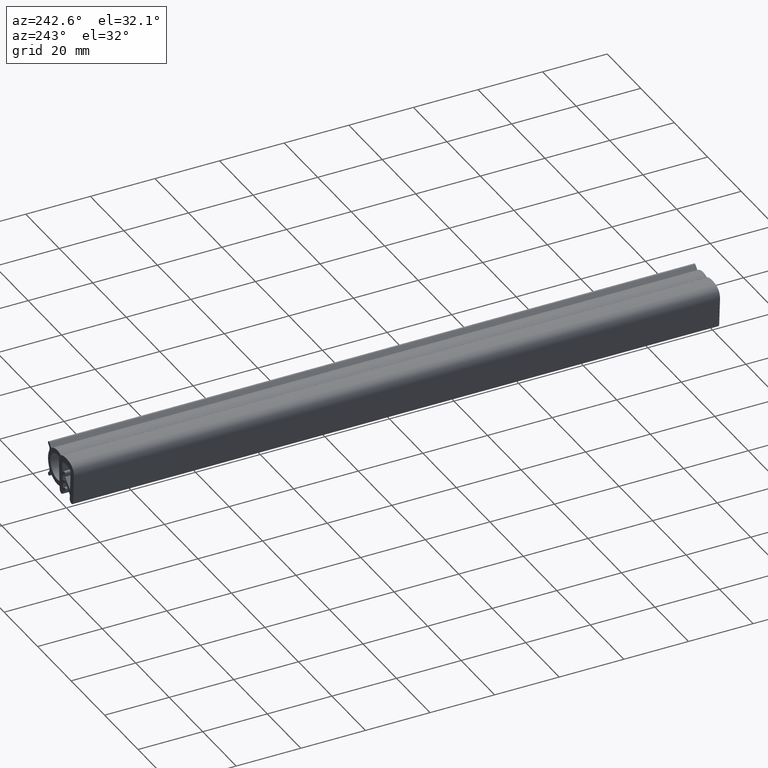
[diagram: clean part render]
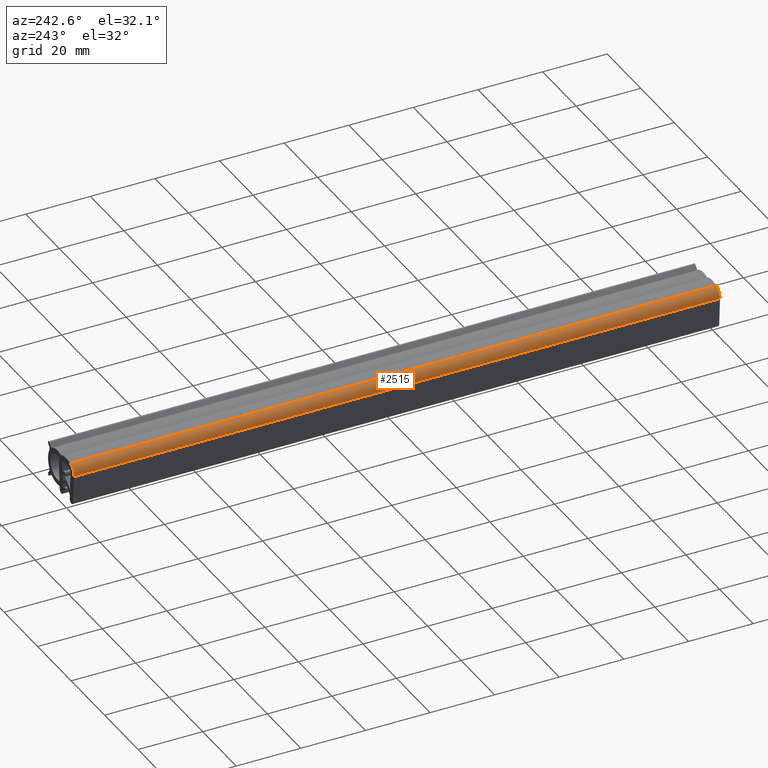
[diagram: same view with one face highlighted and labeled with its STEP entity id]
A machine part, auxiliary view. The second image highlights one B-rep face of the part: STEP entity #2515.
In plain terms, the highlighted face is a freeform B-spline surface patch.
Its self-contained STEP definition (entity closure, byte-faithful):
#1273=CARTESIAN_POINT('',(-2.252474368724600,0.0,-0.286426725031861));
#1274=VERTEX_POINT('',#1273);
#1275=CARTESIAN_POINT('',(-4.496700841699860,0.0,-3.363194973418345));
#1276=VERTEX_POINT('',#1275);
#1277=CARTESIAN_POINT('',(-2.252474368724600,0.0,-0.286426725031861));
#1278=CARTESIAN_POINT('',(-4.638177580234005,0.0,-0.903135297477859));
#1279=CARTESIAN_POINT('',(-4.496700841699860,0.0,-3.363194973418345));
#1287=(BOUNDED_CURVE()B_SPLINE_CURVE(2,(#1277,#1278,#1279),.UNSPECIFIED.,.F.,.U.)CURVE()GEOMETRIC_REPRESENTATION_ITEM()QUASI_UNIFORM_CURVE()RATIONAL_B_SPLINE_CURVE((1.0,0.772746628802413,1.0))REPRESENTATION_ITEM(''));
#1288=EDGE_CURVE('',#1274,#1276,#1287,.T.);
#1607=CARTESIAN_POINT('',(-2.252474368724600,200.0,-0.286426725031861));
#1608=VERTEX_POINT('',#1607);
#1609=CARTESIAN_POINT('',(-4.496700841699860,200.0,-3.363194973418345));
#1610=VERTEX_POINT('',#1609);
#1611=CARTESIAN_POINT('',(-2.252474368724531,200.0,-0.286426725032124));
#1612=CARTESIAN_POINT('',(-4.638177580234005,200.0,-0.903135297477859));
#1613=CARTESIAN_POINT('',(-4.496700841699626,200.0,-3.363194973418332));
#1621=(BOUNDED_CURVE()B_SPLINE_CURVE(2,(#1611,#1612,#1613),.UNSPECIFIED.,.F.,.U.)CURVE()GEOMETRIC_REPRESENTATION_ITEM()QUASI_UNIFORM_CURVE()RATIONAL_B_SPLINE_CURVE((1.0,0.772746628802413,1.0))REPRESENTATION_ITEM(''));
#1622=EDGE_CURVE('',#1608,#1610,#1621,.T.);
#1957=CARTESIAN_POINT('',(-2.252474368724600,200.0,-0.286426725031861));
#1958=CARTESIAN_POINT('',(-2.252474368724600,0.0,-0.286426725031861));
#1959=QUASI_UNIFORM_CURVE('',1,(#1957,#1958),.UNSPECIFIED.,.F.,.U.);
#1960=EDGE_CURVE('',#1608,#1274,#1959,.T.);
#2485=CARTESIAN_POINT('',(-4.496700841699860,200.0,-3.363194973418345));
#2486=CARTESIAN_POINT('',(-4.496700841699860,0.0,-3.363194973418345));
#2487=QUASI_UNIFORM_CURVE('',1,(#2485,#2486),.UNSPECIFIED.,.F.,.U.);
#2488=EDGE_CURVE('',#1610,#1276,#2487,.T.);
#2495=CARTESIAN_POINT('',(-4.490262032770185,205.0,-3.452094026747571));
#2496=CARTESIAN_POINT('',(-4.490262032770185,-5.125000000000000,-3.452094026747571));
#2497=CARTESIAN_POINT('',(-4.725907410042823,205.0,-0.755284073576660));
#2498=CARTESIAN_POINT('',(-4.725907410042823,-5.124999999999999,-0.755284073576660));
#2499=CARTESIAN_POINT('',(-2.067393422987931,204.999999999999970,-0.244778394876447));
#2500=CARTESIAN_POINT('',(-2.067393422987931,-5.125000000000000,-0.244778394876447));
#2508=(BOUNDED_SURFACE()B_SPLINE_SURFACE(1,2,((#2495,#2497,#2499),(#2496,#2498,#2500)),.UNSPECIFIED.,.F.,.F.,.U.)B_SPLINE_SURFACE_WITH_KNOTS((2,2),(3,3),(0.0,210.125000000000000),(0.0,4.613794671245216),.UNSPECIFIED.)GEOMETRIC_REPRESENTATION_ITEM()RATIONAL_B_SPLINE_SURFACE(((1.0,0.740242122591284,0.994137342761868),(1.0,0.740242122591284,0.994137342761868)))REPRESENTATION_ITEM('')SURFACE());
#2509=ORIENTED_EDGE('',*,*,#1288,.F.);
#2510=ORIENTED_EDGE('',*,*,#1960,.F.);
#2511=ORIENTED_EDGE('',*,*,#1622,.T.);
#2512=ORIENTED_EDGE('',*,*,#2488,.T.);
#2513=EDGE_LOOP('',(#2509,#2510,#2511,#2512));
#2514=FACE_OUTER_BOUND('',#2513,.T.);
#2515=ADVANCED_FACE('',(#2514),#2508,.T.);